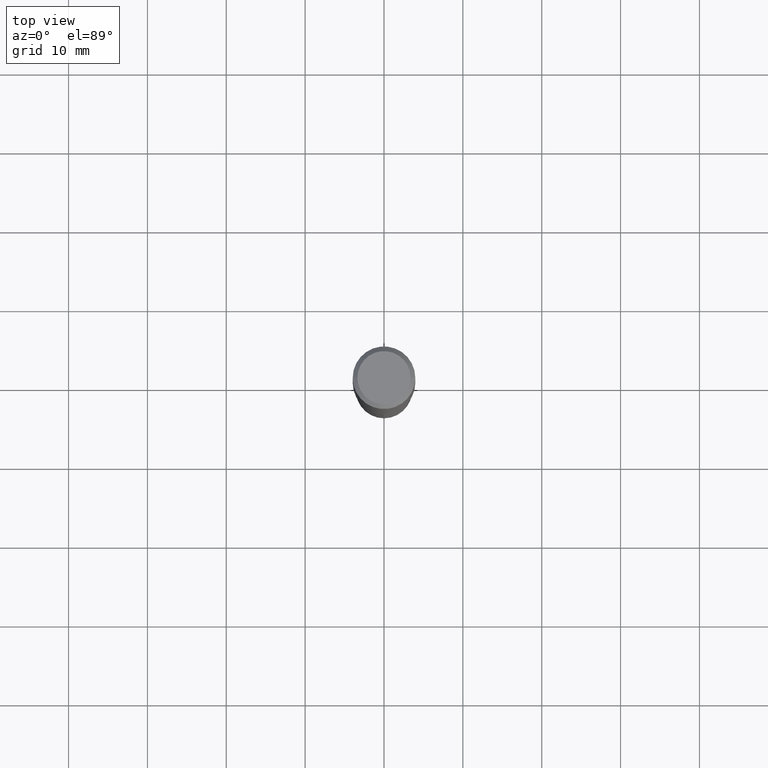
[diagram: clean part render]
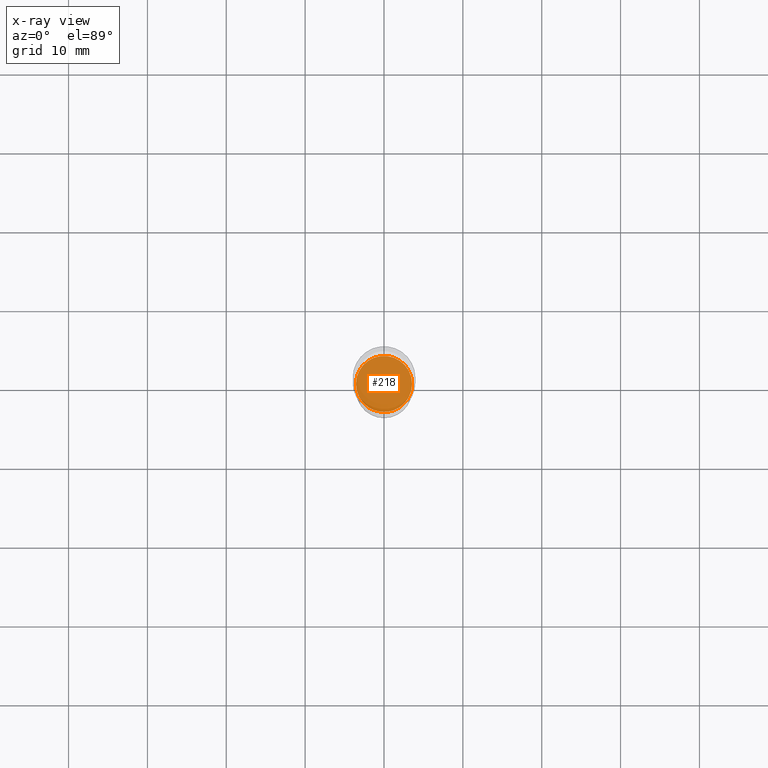
[diagram: x-ray — body ghosted, one internal face saturated and labeled with its STEP entity id]
A machine part, top view, then the same camera in x-ray: the body is ghosted and one INTERNAL B-rep face — a face not visible from any outside direction — is saturated and labeled: STEP entity #218.
In plain terms, the highlighted planar face has unit normal (-0, 0, 1).
Its self-contained STEP definition (entity closure, byte-faithful):
#37 = AXIS2_PLACEMENT_3D ( 'NONE', #440, #324, #178 ) ;
#65 = ORIENTED_EDGE ( 'NONE', *, *, #166, .F. ) ;
#103 = VERTEX_POINT ( 'NONE', #462 ) ;
#125 = CIRCLE ( 'NONE', #37, 0.1400000000000000133 ) ;
#127 = CIRCLE ( 'NONE', #439, 0.1400000000000000133 ) ;
#131 = DIRECTION ( 'NONE',  ( -2.438088387897960049E-29, 3.491481338843145188E-15, 1.000000000000000000 ) ) ;
#162 = AXIS2_PLACEMENT_3D ( 'NONE', #249, #131, #362 ) ;
#166 = EDGE_CURVE ( 'NONE', #380, #103, #125, .T. ) ;
#176 = EDGE_LOOP ( 'NONE', ( #65, #241 ) ) ;
#178 = DIRECTION ( 'NONE',  ( 1.000000000000000000, -6.982962677686262766E-15, 0.000000000000000000 ) ) ;
#186 = CARTESIAN_POINT ( 'NONE',  ( 0.1400000000000000133, -7.359693514147464257E-15, -1.827900000000000524 ) ) ;
#218 = ADVANCED_FACE ( 'NONE', ( #472 ), #405, .F. ) ;
#241 = ORIENTED_EDGE ( 'NONE', *, *, #370, .F. ) ;
#249 = CARTESIAN_POINT ( 'NONE',  ( 4.470072430825811977E-29, -6.382078739271387549E-15, -1.827900000000000524 ) ) ;
#255 = DIRECTION ( 'NONE',  ( 1.000000000000000000, -6.982962677686262766E-15, 0.000000000000000000 ) ) ;
#324 = DIRECTION ( 'NONE',  ( -2.445468806185136597E-29, 3.491481338843145583E-15, 1.000000000000000000 ) ) ;
#362 = DIRECTION ( 'NONE',  ( 1.000000000000000000, -6.982962677686265922E-15, 4.876176775795935793E-29 ) ) ;
#370 = EDGE_CURVE ( 'NONE', #103, #380, #127, .T. ) ;
#380 = VERTEX_POINT ( 'NONE', #186 ) ;
#405 = PLANE ( 'NONE',  #162 ) ;
#416 = DIRECTION ( 'NONE',  ( -2.445468806185136597E-29, 3.491481338843145583E-15, 1.000000000000000000 ) ) ;
#439 = AXIS2_PLACEMENT_3D ( 'NONE', #449, #416, #255 ) ;
#440 = CARTESIAN_POINT ( 'NONE',  ( 4.470072430825811977E-29, -6.382078739271387549E-15, -1.827900000000000524 ) ) ;
#449 = CARTESIAN_POINT ( 'NONE',  ( 4.470072430825811977E-29, -6.382078739271387549E-15, -1.827900000000000524 ) ) ;
#462 = CARTESIAN_POINT ( 'NONE',  ( -0.1400000000000000133, -5.384669682033135993E-15, -1.827900000000000524 ) ) ;
#472 = FACE_OUTER_BOUND ( 'NONE', #176, .T. ) ;